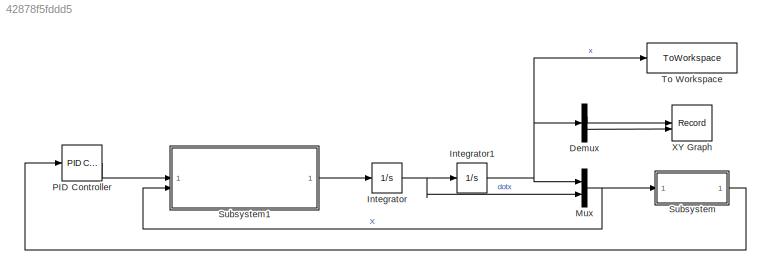
MODEL slx_42878f5fddd5
KIND model
CONFIG AbsTol = auto
CONFIG EnableMultiTasking = off
CONFIG FixedStep = 0.001
CONFIG MaxStep = auto
CONFIG MinStep = auto
CONFIG RelTol = 1e-3
CONFIG SampleTimeConstraint = Unconstrained
CONFIG SolverName = ode4
CONFIG StartTime = 0.0
CONFIG StopTime = 20
BLOCK [Demux] Demux
  Outputs = 2
BLOCK [Integrator] Integrator
  InitialCondition = dot_X0
BLOCK [Integrator] Integrator1
  InitialCondition = X0
BLOCK [Mux] Mux
  DisplayOption = bar
  Inputs = 2
BLOCK [Reference] PID Controller  REF=slpidlib/PID Controller
  LibrarySourceBlock = simulink/Continuous/PID Controller
  SourceBlock = slpidlib/PID Controller
  SourceType = PID 1dof
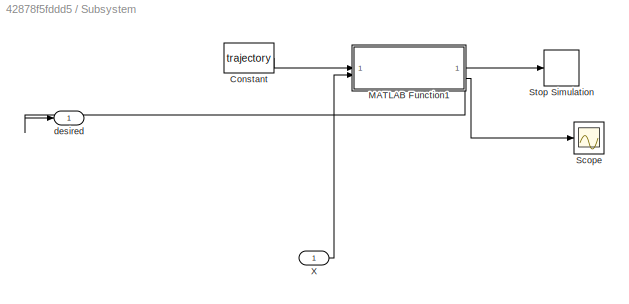
BLOCK [SubSystem] Subsystem
BLOCK [Constant] Subsystem/Constant
  Value = trajectory
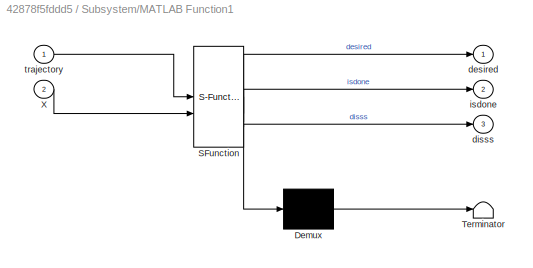
BLOCK [SubSystem] Subsystem/MATLAB Function1
  ErrorFcn = Stateflow.Translate.translate
  LibrarySourceBlock = simulink/User-Defined\nFunctions/MATLAB Function
  PermitHierarchicalResolution = ExplicitOnly
  SFBlockType = MATLAB Function
  TreatAsAtomicUnit = on
BLOCK [Demux] Subsystem/MATLAB Function1/ Demux 
  Outputs = 1
BLOCK [S-Function] Subsystem/MATLAB Function1/ SFunction 
  EnableBusSupport = on
  FunctionName = sf_sfun
  PortCounts = [2 4]
  SFcnIsStateOwnerBlock = off
  SFunctionDeploymentMode = off
  Tag = Stateflow S-Function 1
BLOCK [Terminator] Subsystem/MATLAB Function1/ Terminator 
BLOCK [Inport] Subsystem/MATLAB Function1/X
  Port = 2
BLOCK [Outport] Subsystem/MATLAB Function1/desired
BLOCK [Outport] Subsystem/MATLAB Function1/disss
  Port = 3
BLOCK [Outport] Subsystem/MATLAB Function1/isdone
  Port = 2
BLOCK [Inport] Subsystem/MATLAB Function1/trajectory
BLOCK [Scope] Subsystem/Scope
  Floating = off
  NumInputPorts = 1
  ScopeSpecificationString = Simulink.scopes.TimeScopeBlockCfg('CurrentConfiguration', extmgr.ConfigurationSet(extmgr.Configuration('Core','General UI',true),extmgr.Configuration('Core','Source UI',true),extmgr.Configuration('Sources','WiredSimulink',true),extmgr.Configuration('Visuals','Time Domain',true,'SerializedDisplays',{struct('MinYLimReal','-0.03864','MaxYLimReal','0.34786','YLabelReal','','MinYLimMag','0.00000','MaxY...<+1342ch>
BLOCK [Stop] Subsystem/Stop Simulation
BLOCK [Inport] Subsystem/X
BLOCK [Outport] Subsystem/desired
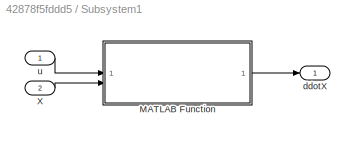
BLOCK [SubSystem] Subsystem1
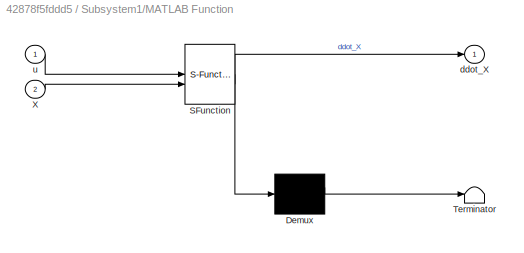
BLOCK [SubSystem] Subsystem1/MATLAB Function
  ErrorFcn = Stateflow.Translate.translate
  LibrarySourceBlock = simulink/User-Defined\nFunctions/MATLAB Function
  PermitHierarchicalResolution = ExplicitOnly
  SFBlockType = MATLAB Function
  TreatAsAtomicUnit = on
BLOCK [Demux] Subsystem1/MATLAB Function/ Demux 
  Outputs = 1
BLOCK [S-Function] Subsystem1/MATLAB Function/ SFunction 
  EnableBusSupport = on
  FunctionName = sf_sfun
  PortCounts = [2 2]
  SFcnIsStateOwnerBlock = off
  SFunctionDeploymentMode = off
  Tag = Stateflow S-Function 2
BLOCK [Terminator] Subsystem1/MATLAB Function/ Terminator 
BLOCK [Inport] Subsystem1/MATLAB Function/X
  Port = 2
BLOCK [Outport] Subsystem1/MATLAB Function/ddot_X
BLOCK [Inport] Subsystem1/MATLAB Function/u
BLOCK [Inport] Subsystem1/X
  Port = 2
BLOCK [Outport] Subsystem1/ddotX
BLOCK [Inport] Subsystem1/u
BLOCK [ToWorkspace] To Workspace
  FixptAsFi = on
  MaxDataPoints = inf
  SampleTime = -1
  Save2DSignal = 2-D array (concatenate along first dimension)
  VariableName = simout
BLOCK [Record] XY Graph
  CompatibilityTag = XY
  FileSettingsInternal = {"entries":[{"content":{"excelSettings":{"content":{},"type":"Streamout.ExcelSettings"}},"type":"Streamout.FileSettingStorage","uuid":""}],"packageUris":["http:\/\/schema.mathworks.com\/mf0\/streamout_blocks\/R2020a"],"version":"1.0"}
  Layout = [1 1]
  SignalsInternal = {"entries":[{"content":{"signals":[{"content":{"blockPath":[],"dimensions":[1,1],"domain":"","lineColor":"#a2142f","plots":[1],"port":1,"sid":[""],"signalID":5052,"signalName":"Demux:1"},"type":"RecordBlkView.Signal","uuid":""},{"content":{"blockPath":[],"dimensions":[1,1],"domain":"","lineColor":"#139fff","plots":[1],"port":2,"sid":[""],"signalID":5056,"signalName":"Demux:2"},"type":"RecordBlkVie...<+166ch>
  VisualizationBindings = {"xyplotplugin":{"info":[{"series":[{"bindingParametersList":[{"parameter":"X-Axis","signalID":5052,"signalName":"Demux:1"},{"parameter":"Y-Axis","signalID":5056,"signalName":"Demux:2"}],"seriesID":9120}],"subplotID":1}]}}
LINE Demux:1 -> XY Graph:1
LINE Demux:2 -> XY Graph:2
NET Integrator1:1 -> Demux:1, Mux:1, To Workspace:1
NET Integrator:1 -> Integrator1:1, Mux:2
NET Mux:1 -> Subsystem1:2, Subsystem:1
LINE PID Controller:1 -> Subsystem1:1
LINE Subsystem/Constant:1 -> Subsystem/MATLAB Function1:1
LINE Subsystem/MATLAB Function1:1 -> Subsystem/desired:1
LINE Subsystem/MATLAB Function1:2 -> Subsystem/Stop Simulation:1
LINE Subsystem/MATLAB Function1:3 -> Subsystem/Scope:1
LINE Subsystem/X:1 -> Subsystem/MATLAB Function1:2
LINE Subsystem1/MATLAB Function:1 -> Subsystem1/ddotX:1
LINE Subsystem1/X:1 -> Subsystem1/MATLAB Function:2
LINE Subsystem1/u:1 -> Subsystem1/MATLAB Function:1
LINE Subsystem1:1 -> Integrator:1
LINE Subsystem:1 -> PID Controller:1
note: NET lines group one-source signal fan-out (src -> all destinations, sorted); 1:1 wires keep LINE
CHART Subsystem/MATLAB Function1 states=1 transitions=1
  STATE_LABEL 'eML_blk_kernel()'
  STATE_LABEL "SCRIPT:\nfunction [desired, isdone, disss] = fcn(trajectory, X)\n\npersistent point_index\nif isempty(point_index)\n    point_index = 0;\nend\n\ntrajectory = trajectory(:, 1:2)';\nxy = X(1:2);\ndistance = ((trajectory - xy).^2);\ndist = sum(distance);\ndist = dist';\nindex = find(dist==min(dist));\nindex = index(1);\nif index <= point_index && index < length(trajectory)\n    index = point_index + 1;\nend\npoint_ind...<+332ch>"
CHART Subsystem1/MATLAB Function states=1 transitions=1
  STATE_LABEL 'eML_blk_kernel()'
  STATE_LABEL 'SCRIPT:\nfunction ddot_X = fcn(u, X)\n\nmu = 0.012277471;\n\na_x = u(1);\na_y = u(2);\n\n% Positions\nx = X(1);\ny = X(2);\nz = 0;\n% Velocities\nxdot = X(3);\nydot = X(4);\n\n% distances from particle to primaries\nr1 = sqrt((x+mu)^2 + y^2 + z^2); \nr2 = sqrt((x-1+mu)^2 + y^2 + z^2); \n\n% Accelerations \nxddot = 2*ydot + x -(1-mu)*((x+mu)/(r1^3)) - mu*(x-1+mu)/(r2^3) + a_x;\nyddot = -2*xdot + y - (1-mu)*(y/(r1^3)) - ...<+47ch>'
CHART  states=0 transitions=0
CHART  states=0 transitions=0
